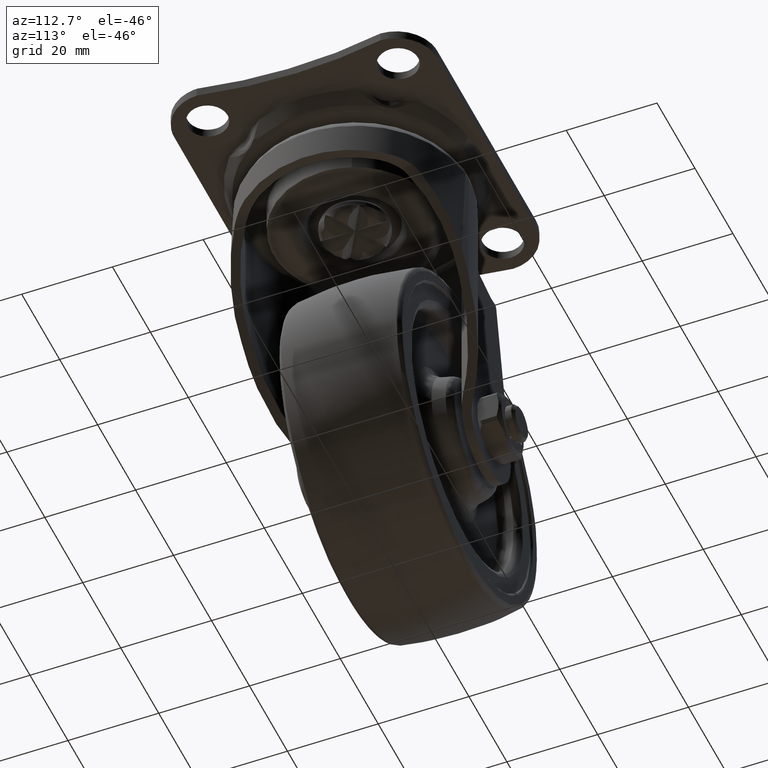
[diagram: clean part render]
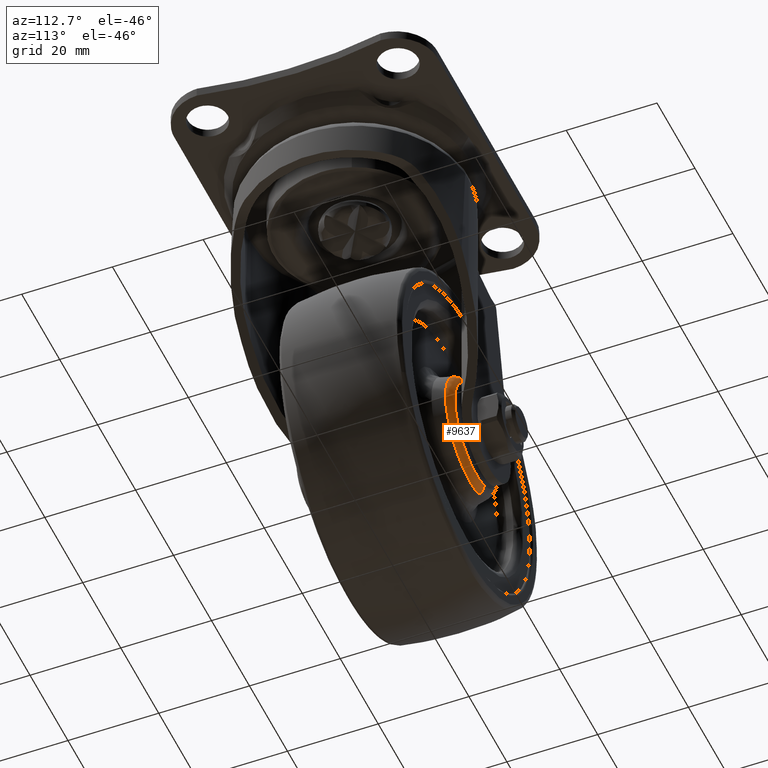
[diagram: same view with one face highlighted and labeled with its STEP entity id]
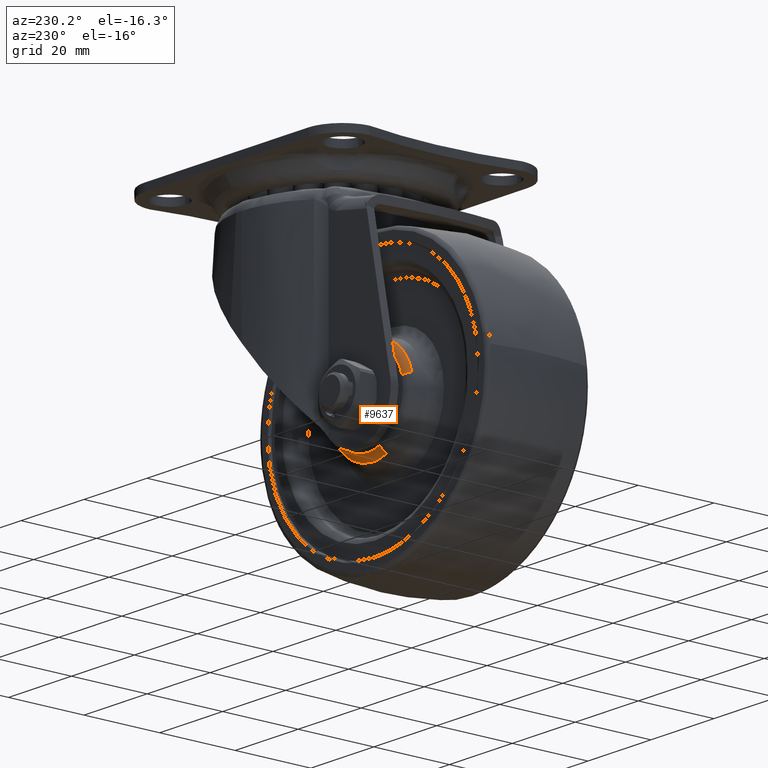
[diagram: same view with one face highlighted and labeled with its STEP entity id]
A machine part, auxiliary view. The second image highlights one B-rep face of the part: STEP entity #9637.
A second angle (auxiliary view) of the same face is appended — the face is thin or edge-on in the first view.
In plain terms, the highlighted face is a freeform B-spline surface patch.
Its self-contained STEP definition (entity closure, byte-faithful):
#7161=CARTESIAN_POINT('',(-23.445230883359510,13.649696689061351,-43.373442024726607));
#7162=VERTEX_POINT('',#7161);
#7168=CARTESIAN_POINT('',(-28.0,13.649696689068801,-42.546262311310812));
#7169=VERTEX_POINT('',#7168);
#7170=CARTESIAN_POINT('',(-23.445230883359510,13.649696689061360,-43.373442024726621));
#7171=CARTESIAN_POINT('',(-25.647504468879287,13.649696689068803,-42.546262311310805));
#7172=CARTESIAN_POINT('',(-28.0,13.649696689068801,-42.546262311310812));
#7180=(BOUNDED_CURVE()B_SPLINE_CURVE(2,(#7170,#7171,#7172),.UNSPECIFIED.,.F.,.U.)B_SPLINE_CURVE_WITH_KNOTS((3,3),(0.440284170897986,0.500000000000000),.UNSPECIFIED.)CURVE()GEOMETRIC_REPRESENTATION_ITEM()RATIONAL_B_SPLINE_CURVE((0.893499554634636,0.930038554400789,1.0))REPRESENTATION_ITEM(''));
#7181=EDGE_CURVE('',#7162,#7169,#7180,.T.);
#7183=CARTESIAN_POINT('',(-40.546778010434657,13.649696689080081,-52.278540943685591));
#7184=VERTEX_POINT('',#7183);
#7185=CARTESIAN_POINT('',(-28.0,13.649696689068801,-42.546262311310812));
#7186=CARTESIAN_POINT('',(-38.047953570683916,13.649696689068801,-42.546262311310805));
#7187=CARTESIAN_POINT('',(-40.546778010434664,13.649696689080077,-52.278540943685599));
#7195=(BOUNDED_CURVE()B_SPLINE_CURVE(2,(#7185,#7186,#7187),.UNSPECIFIED.,.F.,.U.)B_SPLINE_CURVE_WITH_KNOTS((3,3),(0.500000000000000,0.707556761756502),.UNSPECIFIED.)CURVE()GEOMETRIC_REPRESENTATION_ITEM()RATIONAL_B_SPLINE_CURVE((1.0,0.756832127850565,0.917433344553577))REPRESENTATION_ITEM(''));
#7196=EDGE_CURVE('',#7169,#7184,#7195,.T.);
#7198=CARTESIAN_POINT('',(-32.648622787889551,13.649696689065570,-67.590902646989321));
#7199=VERTEX_POINT('',#7198);
#7215=CARTESIAN_POINT('',(-28.0,13.649696689068801,-68.453749688688802));
#7216=VERTEX_POINT('',#7215);
#7217=CARTESIAN_POINT('',(-32.648622787889558,13.649696689065568,-67.590902646989321));
#7218=CARTESIAN_POINT('',(-30.404389413973274,13.649696689068799,-68.453749688688802));
#7219=CARTESIAN_POINT('',(-28.0,13.649696689068801,-68.453749688688802));
#7227=(BOUNDED_CURVE()B_SPLINE_CURVE(2,(#7217,#7218,#7219),.UNSPECIFIED.,.F.,.U.)B_SPLINE_CURVE_WITH_KNOTS((3,3),(0.939060941090335,1.0),.UNSPECIFIED.)CURVE()GEOMETRIC_REPRESENTATION_ITEM()RATIONAL_B_SPLINE_CURVE((0.892016635832351,0.928605451537942,1.0))REPRESENTATION_ITEM(''));
#7228=EDGE_CURVE('',#7199,#7216,#7227,.T.);
#7230=CARTESIAN_POINT('',(-15.070417654482821,13.649696689062640,-56.290813133742219));
#7231=VERTEX_POINT('',#7230);
#7232=CARTESIAN_POINT('',(-28.0,13.649696689068801,-68.453749688688802));
#7233=CARTESIAN_POINT('',(-15.814334722982556,13.649696689068795,-68.453749688688802));
#7234=CARTESIAN_POINT('',(-15.070417654482821,13.649696689062640,-56.290813133742219));
#7242=(BOUNDED_CURVE()B_SPLINE_CURVE(2,(#7232,#7233,#7234),.UNSPECIFIED.,.F.,.U.)B_SPLINE_CURVE_WITH_KNOTS((3,3),(0.0,0.239332962240927),.UNSPECIFIED.)CURVE()GEOMETRIC_REPRESENTATION_ITEM()RATIONAL_B_SPLINE_CURVE((1.0,0.719603993284385,0.976072041670971))REPRESENTATION_ITEM(''));
#7243=EDGE_CURVE('',#7216,#7231,#7242,.T.);
#7345=CARTESIAN_POINT('',(-15.070417654482821,13.649696689062640,-56.290813133742219));
#7346=CARTESIAN_POINT('',(-15.046256311311003,13.649696689068795,-55.895778664790022));
#7347=CARTESIAN_POINT('',(-15.046256311311000,13.649696689068801,-55.500005999999800));
#7348=CARTESIAN_POINT('',(-15.046256311311001,13.649696689068799,-46.528118821103810));
#7349=CARTESIAN_POINT('',(-23.445230883359514,13.649696689061354,-43.373442024726621));
#7357=(BOUNDED_CURVE()B_SPLINE_CURVE(2,(#7345,#7346,#7347,#7348,#7349),.UNSPECIFIED.,.F.,.U.)B_SPLINE_CURVE_WITH_KNOTS((3,2,3),(0.239332962240927,0.250000000000000,0.440284170897986),.UNSPECIFIED.)CURVE()GEOMETRIC_REPRESENTATION_ITEM()RATIONAL_B_SPLINE_CURVE((0.976072041670971,0.987502787902162,1.0,0.777068226785759,0.893499554634636))REPRESENTATION_ITEM(''));
#7358=EDGE_CURVE('',#7231,#7162,#7357,.T.);
#9520=CARTESIAN_POINT('',(-31.998635621136295,14.996695579699420,-65.900313468545704));
#9521=CARTESIAN_POINT('',(-31.396189776470870,14.996695579699413,-66.131937525966123));
#9522=CARTESIAN_POINT('',(-30.771029032042467,14.996695579699418,-66.292451523350351));
#9523=CARTESIAN_POINT('',(-19.978583508691905,14.996695579699413,-69.063480555392800));
#9524=CARTESIAN_POINT('',(-17.207554476649459,14.996695579699418,-58.271035032042263));
#9525=CARTESIAN_POINT('',(-14.436525444606996,14.996695579699413,-47.478589508691705));
#9526=CARTESIAN_POINT('',(-25.228970967957547,14.996695579699418,-44.707560476649256));
#9527=CARTESIAN_POINT('',(-36.021416491308095,14.996695579699413,-41.936531444606786));
#9528=CARTESIAN_POINT('',(-38.792445523350551,14.996695579699418,-52.728976967957344));
#9529=CARTESIAN_POINT('',(-32.561346289562124,15.093192977252587,-67.363903683299156));
#9530=CARTESIAN_POINT('',(-31.874120851039706,15.093192977252579,-67.628123190899032));
#9531=CARTESIAN_POINT('',(-31.160983943314147,15.093192977252588,-67.811225627770568));
#9532=CARTESIAN_POINT('',(-18.849764315543400,15.093192977252583,-70.972209571084704));
#9533=CARTESIAN_POINT('',(-15.688780372229248,15.093192977252588,-58.660989943313943));
#9534=CARTESIAN_POINT('',(-12.527796428915112,15.093192977252583,-46.349770315543203));
#9535=CARTESIAN_POINT('',(-24.839016056685860,15.093192977252588,-43.188786372229046));
#9536=CARTESIAN_POINT('',(-37.150235684456611,15.093192977252583,-40.027802428914917));
#9537=CARTESIAN_POINT('',(-40.311219627770754,15.093192977252588,-52.339022056685650));
#9538=CARTESIAN_POINT('',(-32.656257718700239,13.544612103591703,-67.610764897683794));
#9539=CARTESIAN_POINT('',(-31.954732653626870,13.544612103591692,-67.880482223138429));
#9540=CARTESIAN_POINT('',(-31.226756959546016,13.544612103591700,-68.067394612786813));
#9541=CARTESIAN_POINT('',(-18.659368346759010,13.544612103591694,-71.294151572332794));
#9542=CARTESIAN_POINT('',(-15.432611387212994,13.544612103591700,-58.726762959545816));
#9543=CARTESIAN_POINT('',(-12.205854427666987,13.544612103591694,-46.159374346758796));
#9544=CARTESIAN_POINT('',(-24.773243040453988,13.544612103591700,-42.932617387212794));
#9545=CARTESIAN_POINT('',(-37.340631653240983,13.544612103591694,-39.705860427666778));
#9546=CARTESIAN_POINT('',(-40.567388612787006,13.544612103591700,-52.273249040453770));
#9554=(BOUNDED_SURFACE()B_SPLINE_SURFACE(2,2,((#9520,#9529,#9538),(#9521,#9530,#9539),(#9522,#9531,#9540),(#9523,#9532,#9541),(#9524,#9533,#9542),(#9525,#9534,#9543),(#9526,#9535,#9544),(#9527,#9536,#9545),(#9528,#9537,#9546)),.UNSPECIFIED.,.F.,.F.,.U.)B_SPLINE_SURFACE_WITH_KNOTS((3,2,2,2,3),(3,3),(0.0,1.719816094769422,23.217537781212229,44.715259467655052,66.212981154097861),(0.0,2.681079085773666),.UNSPECIFIED.)GEOMETRIC_REPRESENTATION_ITEM()RATIONAL_B_SPLINE_SURFACE(((0.875020246527730,0.652152537023482,0.877753574519185),(0.893018737118953,0.665566810976842,0.895808287555925),(0.914445507740093,0.681536181829969,0.917301989647665),(0.646610619548595,0.481918855795959,0.648630457275776),(0.914445507740093,0.681536181829969,0.917301989647665),(0.646610619548595,0.481918855795959,0.648630457275776),(0.914445507740093,0.681536181829969,0.917301989647665),(0.646610619548595,0.481918855795959,0.648630457275776),(0.914445507740093,0.681536181829969,0.917301989647665)))REPRESENTATION_ITEM('')SURFACE());
#9555=ORIENTED_EDGE('',*,*,#7228,.F.);
#9556=CARTESIAN_POINT('',(-32.037211847971832,14.999999999999840,-66.000645310136008));
#9557=VERTEX_POINT('',#9556);
#9558=CARTESIAN_POINT('',(-32.037211847971832,14.999999999999845,-66.000645310136008));
#9559=CARTESIAN_POINT('',(-32.534942148505685,14.999999617674723,-67.295223491222288));
#9560=CARTESIAN_POINT('',(-32.648622787889551,13.649696689065570,-67.590902646989321));
#9568=(BOUNDED_CURVE()B_SPLINE_CURVE(2,(#9558,#9559,#9560),.UNSPECIFIED.,.F.,.U.)B_SPLINE_CURVE_WITH_KNOTS((3,3),(-1.688983483578145,-0.301714906843582),.UNSPECIFIED.)CURVE()GEOMETRIC_REPRESENTATION_ITEM()RATIONAL_B_SPLINE_CURVE((0.855702183809113,0.671594435250412,0.858187727277491))REPRESENTATION_ITEM(''));
#9569=EDGE_CURVE('',#9557,#7199,#9568,.T.);
#9570=ORIENTED_EDGE('',*,*,#9569,.F.);
#9571=CARTESIAN_POINT('',(-28.0,14.999999999999879,-66.750005999999800));
#9572=VERTEX_POINT('',#9571);
#9573=CARTESIAN_POINT('',(-32.037211847971832,14.999999999999840,-66.000645310136008));
#9574=CARTESIAN_POINT('',(-30.088151623883796,14.999999999999876,-66.750005999999800));
#9575=CARTESIAN_POINT('',(-28.0,14.999999999999879,-66.750005999999800));
#9583=(BOUNDED_CURVE()B_SPLINE_CURVE(2,(#9573,#9574,#9575),.UNSPECIFIED.,.F.,.U.)B_SPLINE_CURVE_WITH_KNOTS((3,3),(0.939060941065835,1.0),.UNSPECIFIED.)CURVE()GEOMETRIC_REPRESENTATION_ITEM()RATIONAL_B_SPLINE_CURVE((0.892016635802931,0.928605451509239,1.0))REPRESENTATION_ITEM(''));
#9584=EDGE_CURVE('',#9557,#9572,#9583,.T.);
#9585=ORIENTED_EDGE('',*,*,#9584,.T.);
#9586=CARTESIAN_POINT('',(-28.0,14.999999999999879,-44.250005999999800));
#9587=VERTEX_POINT('',#9586);
#9588=CARTESIAN_POINT('',(-28.0,14.999999999999879,-66.750005999999800));
#9589=CARTESIAN_POINT('',(-16.750000000000000,14.999999999999881,-66.750005999999814));
#9590=CARTESIAN_POINT('',(-16.750000000000000,14.999999999999879,-55.500005999999800));
#9591=CARTESIAN_POINT('',(-16.750000000000000,14.999999999999881,-44.250005999999807));
#9592=CARTESIAN_POINT('',(-28.0,14.999999999999879,-44.250005999999800));
#9600=(BOUNDED_CURVE()B_SPLINE_CURVE(2,(#9588,#9589,#9590,#9591,#9592),.UNSPECIFIED.,.F.,.U.)B_SPLINE_CURVE_WITH_KNOTS((3,2,3),(0.0,0.250000000000000,0.500000000000000),.UNSPECIFIED.)CURVE()GEOMETRIC_REPRESENTATION_ITEM()RATIONAL_B_SPLINE_CURVE((1.0,0.707106781186548,1.0,0.707106781186548,1.0))REPRESENTATION_ITEM(''));
#9601=EDGE_CURVE('',#9572,#9587,#9600,.T.);
#9602=ORIENTED_EDGE('',*,*,#9601,.T.);
#9603=CARTESIAN_POINT('',(-38.896560795853162,14.999999999999851,-52.702244707516577));
#9604=VERTEX_POINT('',#9603);
#9605=CARTESIAN_POINT('',(-28.0,14.999999999999879,-44.250005999999800));
#9606=CARTESIAN_POINT('',(-36.726394496183268,14.999999999999885,-44.250005999999800));
#9607=CARTESIAN_POINT('',(-38.896560795853162,14.999999999999844,-52.702244707516584));
#9615=(BOUNDED_CURVE()B_SPLINE_CURVE(2,(#9605,#9606,#9607),.UNSPECIFIED.,.F.,.U.)B_SPLINE_CURVE_WITH_KNOTS((3,3),(0.500000000000000,0.707556761700569),.UNSPECIFIED.)CURVE()GEOMETRIC_REPRESENTATION_ITEM()RATIONAL_B_SPLINE_CURVE((1.0,0.756832127916094,0.917433344467018))REPRESENTATION_ITEM(''));
#9616=EDGE_CURVE('',#9587,#9604,#9615,.T.);
#9617=ORIENTED_EDGE('',*,*,#9616,.T.);
#9618=CARTESIAN_POINT('',(-38.896560795853155,14.999999999999849,-52.702244707516599));
#9619=CARTESIAN_POINT('',(-40.239950416236624,14.999999617642356,-52.357320880045435));
#9620=CARTESIAN_POINT('',(-40.546778010434664,13.649696689080084,-52.278540943685591));
#9628=(BOUNDED_CURVE()B_SPLINE_CURVE(2,(#9618,#9619,#9620),.UNSPECIFIED.,.F.,.U.)B_SPLINE_CURVE_WITH_KNOTS((3,3),(-1.688983483552119,-0.301714906862633),.UNSPECIFIED.)CURVE()GEOMETRIC_REPRESENTATION_ITEM()RATIONAL_B_SPLINE_CURVE((0.894257077759912,0.701854089519382,0.896854610969884))REPRESENTATION_ITEM(''));
#9629=EDGE_CURVE('',#9604,#7184,#9628,.T.);
#9630=ORIENTED_EDGE('',*,*,#9629,.T.);
#9631=ORIENTED_EDGE('',*,*,#7196,.F.);
#9632=ORIENTED_EDGE('',*,*,#7181,.F.);
#9633=ORIENTED_EDGE('',*,*,#7358,.F.);
#9634=ORIENTED_EDGE('',*,*,#7243,.F.);
#9635=EDGE_LOOP('',(#9555,#9570,#9585,#9602,#9617,#9630,#9631,#9632,#9633,#9634));
#9636=FACE_OUTER_BOUND('',#9635,.T.);
#9637=ADVANCED_FACE('',(#9636),#9554,.T.);